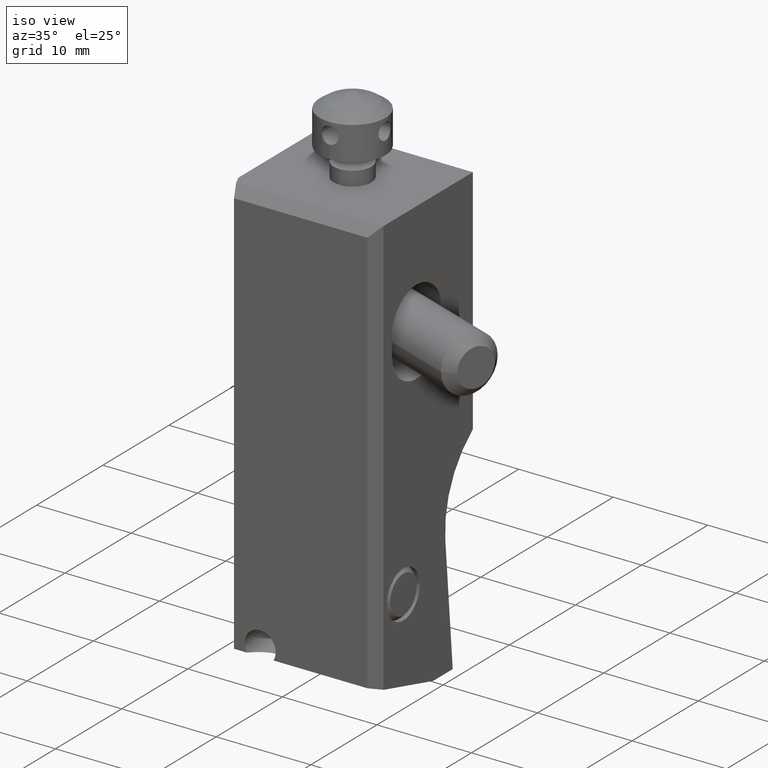
[diagram: clean part render]
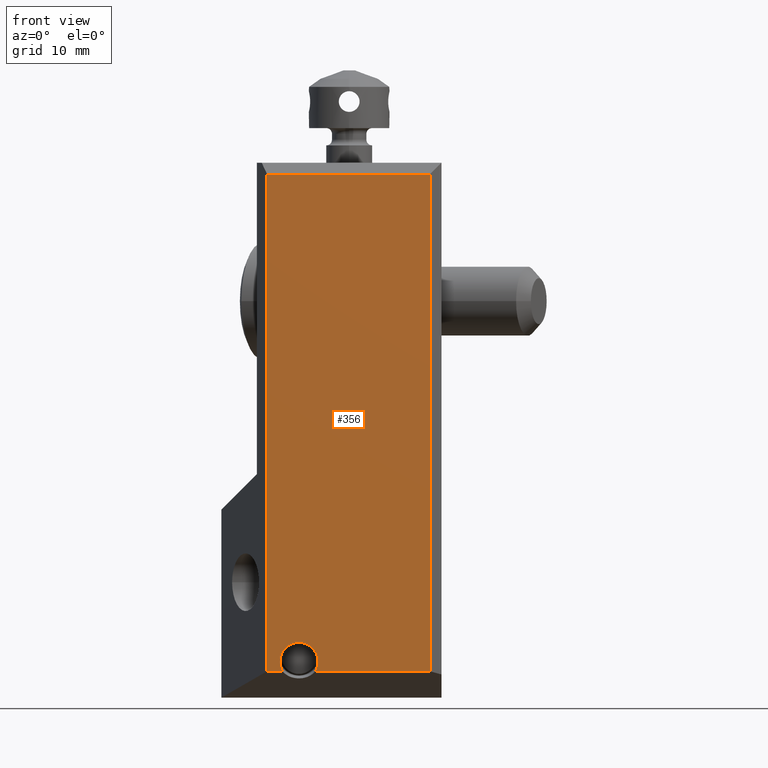
[diagram: tour spotlight — one face highlighted and labeled with its STEP entity id]
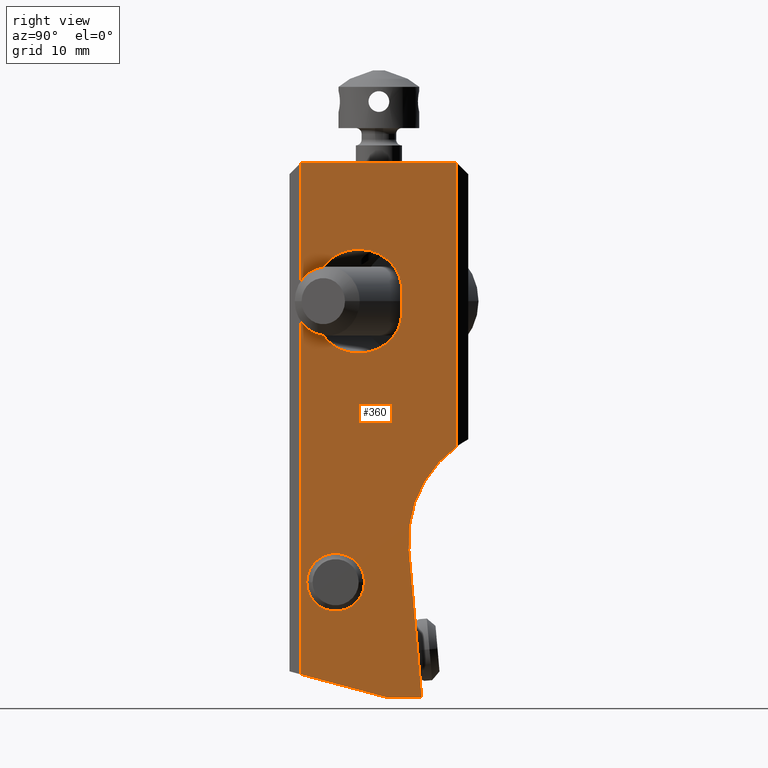
[diagram: tour spotlight — one face highlighted and labeled with its STEP entity id]
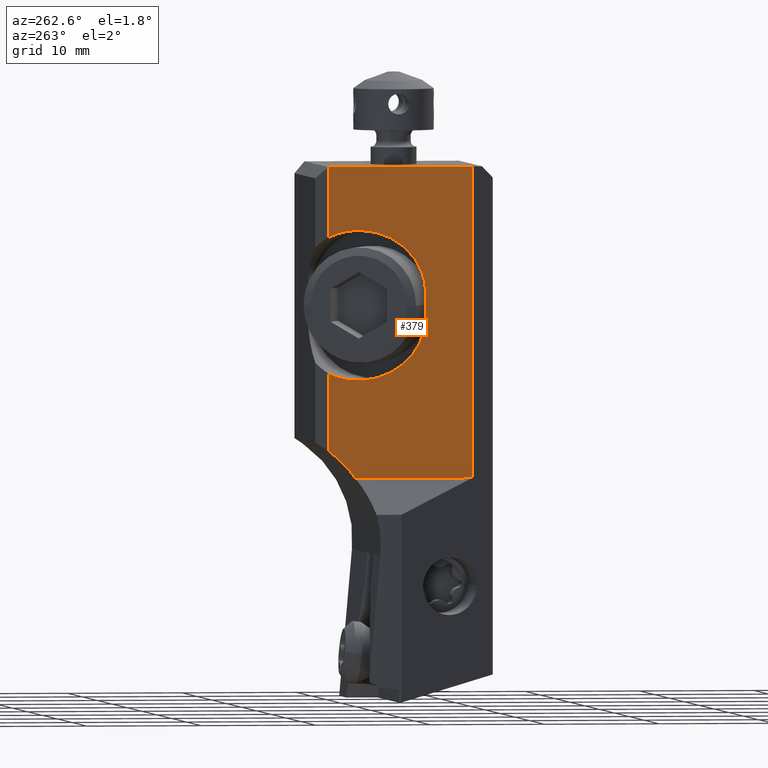
[diagram: tour spotlight — one face highlighted and labeled with its STEP entity id]
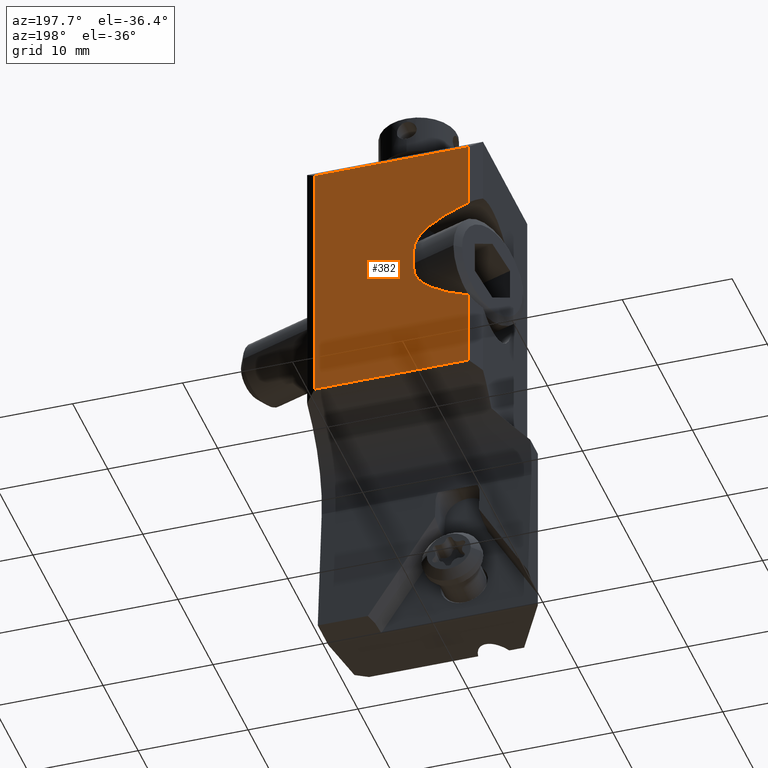
[diagram: tour spotlight — one face highlighted and labeled with its STEP entity id]
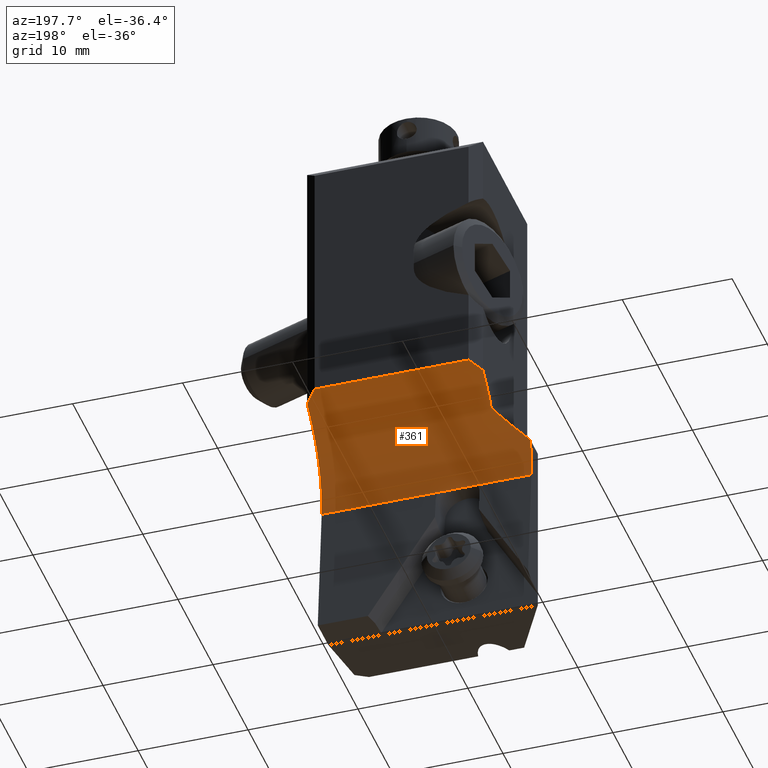
[diagram: tour spotlight — one face highlighted and labeled with its STEP entity id]
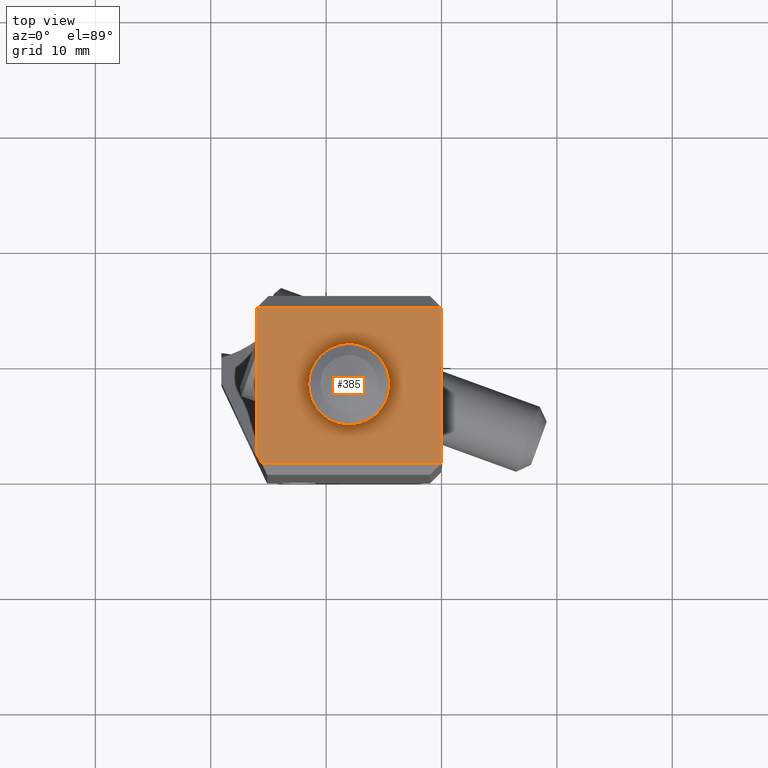
[diagram: tour spotlight — one face highlighted and labeled with its STEP entity id]
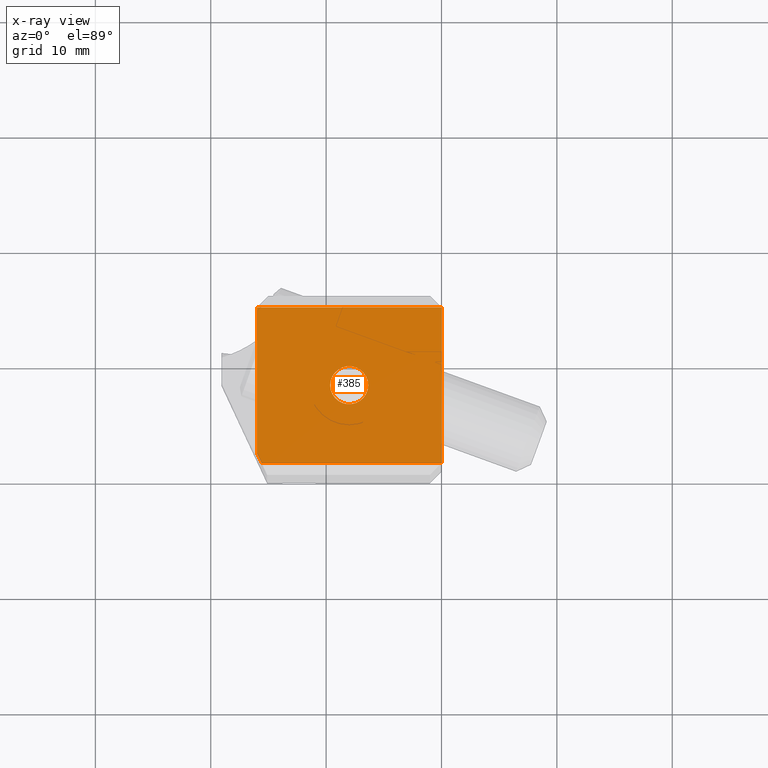
[diagram: x-ray of the same camera — body ghosted, this tour face saturated]
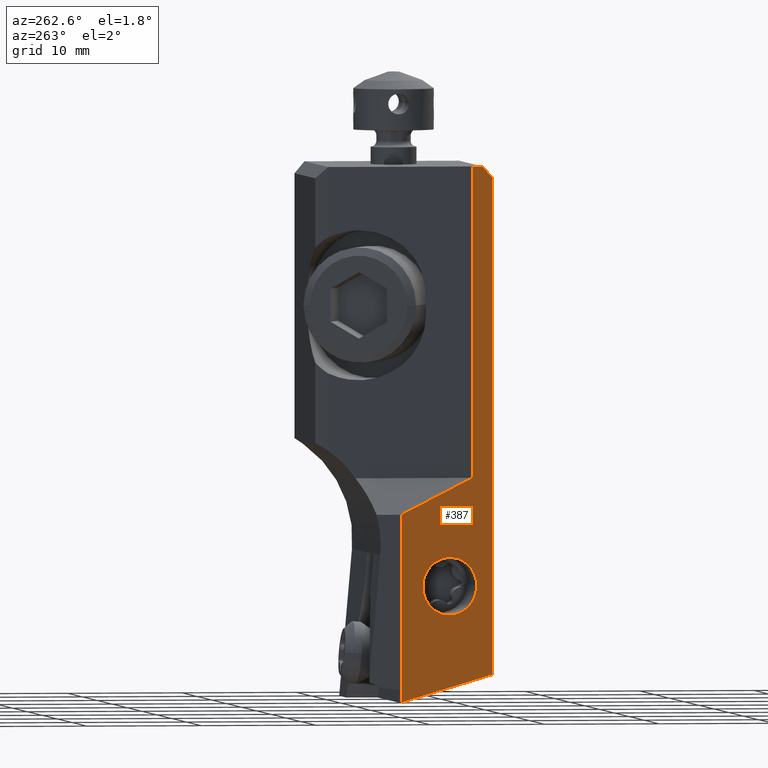
[diagram: tour spotlight — one face highlighted and labeled with its STEP entity id]
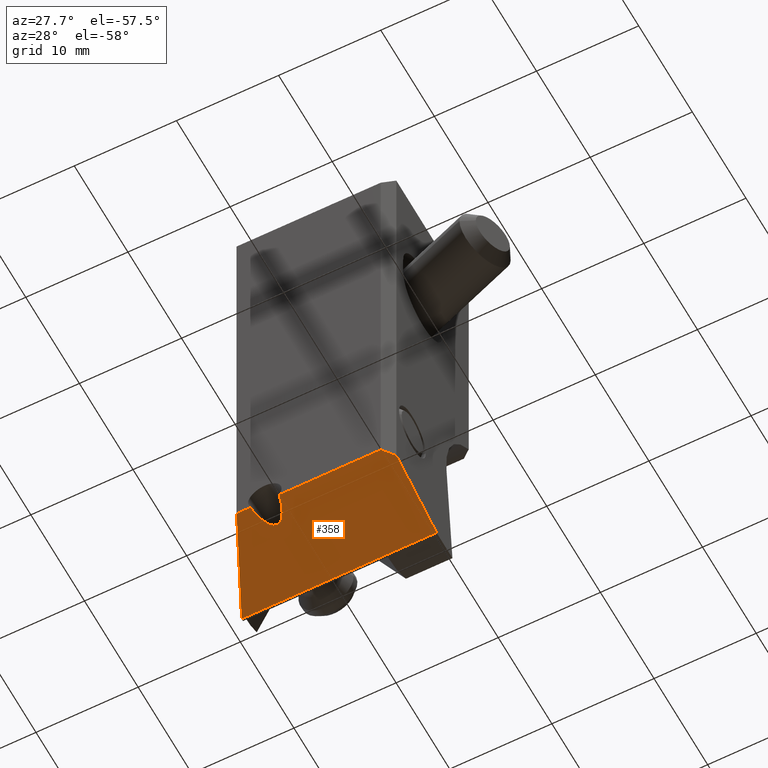
[diagram: tour spotlight — one face highlighted and labeled with its STEP entity id]
A machine part: a face-by-face anatomy tour. The part has 141 B-rep faces; the first image is the clean iso view, then the 8 largest visible faces are spotlighted one at a time (largest first), each with its STEP entity span.

Face 1 — front view, entity #356. In plain terms, the highlighted planar face has unit normal (0, 1, 0).
Definition (entity closure, byte-faithful):
#356=ADVANCED_FACE('',(#546),#497,.F.);
#497=PLANE('',#2659);
#546=FACE_OUTER_BOUND('',#674,.T.);
#674=EDGE_LOOP('',(#848,#849,#850,#851,#852,#853,#854));
#829=ELLIPSE('',#2657,1.65630273192278,1.649999999976);
#830=ELLIPSE('',#2658,1.65630273192278,1.649999999976);
#848=ORIENTED_EDGE('',*,*,#1827,.T.);
#849=ORIENTED_EDGE('',*,*,#1828,.T.);
#850=ORIENTED_EDGE('',*,*,#1829,.T.);
#851=ORIENTED_EDGE('',*,*,#1830,.T.);
#852=ORIENTED_EDGE('',*,*,#1831,.T.);
#853=ORIENTED_EDGE('',*,*,#1832,.T.);
#854=ORIENTED_EDGE('',*,*,#1833,.T.);
#1588=VERTEX_POINT('',#3780);
#1589=VERTEX_POINT('',#3781);
#1590=VERTEX_POINT('',#3783);
#1591=VERTEX_POINT('',#3785);
#1592=VERTEX_POINT('',#3787);
#1593=VERTEX_POINT('',#3789);
#1594=VERTEX_POINT('',#3791);
#1827=EDGE_CURVE('',#1588,#1589,#2197,.T.);
#1828=EDGE_CURVE('',#1589,#1590,#2198,.T.);
#1829=EDGE_CURVE('',#1590,#1591,#2199,.T.);
#1830=EDGE_CURVE('',#1591,#1592,#2200,.T.);
#1831=EDGE_CURVE('',#1592,#1593,#2201,.T.);
#1832=EDGE_CURVE('',#1593,#1594,#829,.T.);
#1833=EDGE_CURVE('',#1594,#1588,#830,.T.);
#2197=LINE('',#3779,#2371);
#2198=LINE('',#3782,#2372);
#2199=LINE('',#3784,#2373);
#2200=LINE('',#3786,#2374);
#2201=LINE('',#3788,#2375);
#2371=VECTOR('',#2993,1.);
#2372=VECTOR('',#2994,1.);
#2373=VECTOR('',#2995,1.);
#2374=VECTOR('',#2996,1.);
#2375=VECTOR('',#2997,1.);
#2657=AXIS2_PLACEMENT_3D('',#3790,#2998,#2999);
#2658=AXIS2_PLACEMENT_3D('',#3792,#3000,#3001);
#2659=AXIS2_PLACEMENT_3D('',#3793,#3002,#3003);
#2993=DIRECTION('',(1.,8.899418468579E-14,-8.045850571178E-13));
#2994=DIRECTION('',(0.,0.,1.));
#2995=DIRECTION('',(-1.,-5.736048320469E-14,0.));
#2996=DIRECTION('',(0.,0.,-1.));
#2997=DIRECTION('',(1.,2.927424162579E-13,5.861626492073E-12));
#2998=DIRECTION('',(0.,1.,0.));
#2999=DIRECTION('',(0.,0.,1.));
#3000=DIRECTION('',(0.,1.,0.));
#3001=DIRECTION('',(0.,0.,1.));
#3002=DIRECTION('',(0.,1.,0.));
#3003=DIRECTION('',(0.,0.,-1.));
#3779=CARTESIAN_POINT('',(-10.93506616434,-1.156186257845E-12,-44.0840598719));
#3780=CARTESIAN_POINT('',(-10.9350661643587,-5.78093128923214E-13,-44.0840598719044));
#3781=CARTESIAN_POINT('',(-1.,-2.720231447502E-13,-44.08405987191));
#3782=CARTESIAN_POINT('',(-1.,-2.720231447502E-13,-44.08405987191));
#3783=CARTESIAN_POINT('',(-1.,0.,-1.));
#3784=CARTESIAN_POINT('',(-1.,0.,-1.));
#3785=CARTESIAN_POINT('',(-15.11638490568,-8.096856518591E-13,-1.));
#3786=CARTESIAN_POINT('',(-15.11638490568,-8.096856518591E-13,-1.));
#3787=CARTESIAN_POINT('',(-15.11638490568,-1.082097374668E-12,-44.08405987191));
#3788=CARTESIAN_POINT('',(-15.11638490568,-1.082097374668E-12,-44.08405987191));
#3789=CARTESIAN_POINT('',(-13.7732741627807,-3.4445594524515E-13,-44.0840598719055));
#3790=CARTESIAN_POINT('',(-12.35417016357,0.,-43.2390344356227));
#3791=CARTESIAN_POINT('',(-12.35417016357,0.,-41.582731703695));
#3792=CARTESIAN_POINT('',(-12.35417016357,0.,-43.2390344356227));
#3793=CARTESIAN_POINT('',(-8.05819245284,0.,-22.54202993596));

Face 2 — right view, entity #360. In plain terms, the highlighted planar face has unit normal (1, 0, 0).
Definition (entity closure, byte-faithful):
#133=FACE_BOUND('',#678,.T.);
#134=FACE_BOUND('',#679,.T.);
#135=FACE_BOUND('',#680,.T.);
#221=CIRCLE('',#2666,10.);
#222=CIRCLE('',#2670,2.5);
#223=CIRCLE('',#2671,2.5);
#360=ADVANCED_FACE('',(#133,#134,#135),#500,.T.);
#500=PLANE('',#2672);
#678=EDGE_LOOP('',(#872,#873,#874,#875,#876,#877,#878));
#679=EDGE_LOOP('',(#879,#880,#881,#882,#883));
#680=EDGE_LOOP('',(#884,#885));
#833=ELLIPSE('',#2667,3.72462220366299,3.5);
#834=ELLIPSE('',#2668,3.72462220366299,3.5);
#835=ELLIPSE('',#2669,3.72462220366299,3.5);
#872=ORIENTED_EDGE('',*,*,#1845,.T.);
#873=ORIENTED_EDGE('',*,*,#1846,.T.);
#874=ORIENTED_EDGE('',*,*,#1844,.F.);
#875=ORIENTED_EDGE('',*,*,#1841,.F.);
#876=ORIENTED_EDGE('',*,*,#1847,.T.);
#877=ORIENTED_EDGE('',*,*,#1848,.F.);
#878=ORIENTED_EDGE('',*,*,#1849,.F.);
#879=ORIENTED_EDGE('',*,*,#1850,.T.);
#880=ORIENTED_EDGE('',*,*,#1851,.T.);
#881=ORIENTED_EDGE('',*,*,#1852,.T.);
#882=ORIENTED_EDGE('',*,*,#1853,.T.);
#883=ORIENTED_EDGE('',*,*,#1854,.T.);
#884=ORIENTED_EDGE('',*,*,#1855,.F.);
#885=ORIENTED_EDGE('',*,*,#1856,.F.);
#1599=VERTEX_POINT('',#3806);
#1600=VERTEX_POINT('',#3808);
#1601=VERTEX_POINT('',#3812);
#1602=VERTEX_POINT('',#3816);
#1603=VERTEX_POINT('',#3817);
#1604=VERTEX_POINT('',#3820);
#1605=VERTEX_POINT('',#3822);
#1606=VERTEX_POINT('',#3825);
#1607=VERTEX_POINT('',#3826);
#1608=VERTEX_POINT('',#3828);
#1609=VERTEX_POINT('',#3830);
#1610=VERTEX_POINT('',#3832);
#1611=VERTEX_POINT('',#3835);
#1612=VERTEX_POINT('',#3836);
#1841=EDGE_CURVE('',#1599,#1600,#2206,.T.);
#1844=EDGE_CURVE('',#1600,#1601,#2209,.T.);
#1845=EDGE_CURVE('',#1602,#1603,#2210,.T.);
#1846=EDGE_CURVE('',#1603,#1601,#2211,.T.);
#1847=EDGE_CURVE('',#1599,#1604,#2212,.T.);
#1848=EDGE_CURVE('',#1605,#1604,#2213,.T.);
#1849=EDGE_CURVE('',#1602,#1605,#221,.T.);
#1850=EDGE_CURVE('',#1606,#1607,#2214,.T.);
#1851=EDGE_CURVE('',#1607,#1608,#833,.T.);
#1852=EDGE_CURVE('',#1608,#1609,#834,.T.);
#1853=EDGE_CURVE('',#1609,#1610,#2215,.T.);
#1854=EDGE_CURVE('',#1610,#1606,#835,.T.);
#1855=EDGE_CURVE('',#1611,#1612,#222,.T.);
#1856=EDGE_CURVE('',#1612,#1611,#223,.T.);
#2206=LINE('',#3807,#2380);
#2209=LINE('',#3813,#2383);
#2210=LINE('',#3815,#2384);
#2211=LINE('',#3818,#2385);
#2212=LINE('',#3819,#2386);
#2213=LINE('',#3821,#2387);
#2214=LINE('',#3824,#2388);
#2215=LINE('',#3831,#2389);
#2380=VECTOR('',#3016,1.);
#2383=VECTOR('',#3021,1.);
#2384=VECTOR('',#3024,1.);
#2385=VECTOR('',#3025,1.);
#2386=VECTOR('',#3026,1.);
#2387=VECTOR('',#3027,1.);
#2388=VECTOR('',#3030,1.);
#2389=VECTOR('',#3035,1.);
#2666=AXIS2_PLACEMENT_3D('',#3823,#3028,#3029);
#2667=AXIS2_PLACEMENT_3D('',#3827,#3031,#3032);
#2668=AXIS2_PLACEMENT_3D('',#3829,#3033,#3034);
#2669=AXIS2_PLACEMENT_3D('',#3833,#3036,#3037);
#2670=AXIS2_PLACEMENT_3D('',#3834,#3038,#3039);
#2671=AXIS2_PLACEMENT_3D('',#3837,#3040,#3041);
#2672=AXIS2_PLACEMENT_3D('',#3838,#3042,#3043);
#3016=DIRECTION('',(0.,-0.965925826289157,0.258819045102189));
#3021=DIRECTION('',(0.,0.,1.));
#3024=DIRECTION('',(2.872542101019E-14,-1.117859866575E-13,1.));
#3025=DIRECTION('',(0.,-1.,0.));
#3026=DIRECTION('',(0.,1.,6.740080990406E-13));
#3027=DIRECTION('',(0.,0.0871557427473774,-0.99619469809177));
#3028=DIRECTION('',(1.,0.,0.));
#3029=DIRECTION('',(0.,-0.580866963927694,0.813998507503191));
#3030=DIRECTION('',(0.,0.,1.));
#3031=DIRECTION('',(-1.,0.,0.));
#3032=DIRECTION('',(0.,1.,0.));
#3033=DIRECTION('',(-1.,0.,0.));
#3034=DIRECTION('',(0.,1.,0.));
#3035=DIRECTION('',(0.,-5.595524044111E-14,-1.));
#3036=DIRECTION('',(-1.,0.,0.));
#3037=DIRECTION('',(0.,1.,0.));
#3038=DIRECTION('',(1.,0.,0.));
#3039=DIRECTION('',(0.,-1.,0.));
#3040=DIRECTION('',(1.,0.,0.));
#3041=DIRECTION('',(0.,1.,0.));
#3042=DIRECTION('',(1.,0.,0.));
#3043=DIRECTION('',(0.,0.,1.));
#3806=CARTESIAN_POINT('',(0.,8.499999999999,-46.36162800757));
#3807=CARTESIAN_POINT('',(0.,8.499999999999,-46.36162800757));
#3808=CARTESIAN_POINT('',(0.,0.9999999999996,-44.35200906434));
#3812=CARTESIAN_POINT('',(0.,1.,0.));
#3813=CARTESIAN_POINT('',(0.,0.9999999999996,-44.35200906434));
#3815=CARTESIAN_POINT('',(-7.067494737593E-13,14.5,-24.59879336949));
#3816=CARTESIAN_POINT('',(-3.53591577314152E-13,14.4999999999996,-24.5987933694906));
#3817=CARTESIAN_POINT('',(0.,14.5,0.));
#3818=CARTESIAN_POINT('',(0.,14.5,0.));
#3819=CARTESIAN_POINT('',(0.,8.499999999999,-46.36162800757));
#3820=CARTESIAN_POINT('',(0.,11.46231616553,-46.36162800757));
#3821=CARTESIAN_POINT('',(0.,10.34672265836,-33.610335872));
#3822=CARTESIAN_POINT('',(0.,10.34672265836,-33.610335872));
#3823=CARTESIAN_POINT('',(0.,20.30866963928,-32.73877844452));
#3824=CARTESIAN_POINT('',(3.041122909053E-12,2.275377796343,-13.));
#3825=CARTESIAN_POINT('',(1.52919690798997E-12,2.2753777963527,-13.0000000000005));
#3826=CARTESIAN_POINT('',(1.52055712547909E-12,2.27537779635268,-11.));
#3827=CARTESIAN_POINT('',(0.,6.00000000002535,-11.));
#3828=CARTESIAN_POINT('',(0.,6.,-7.5));
#3829=CARTESIAN_POINT('',(0.,6.00000000002535,-11.));
#3830=CARTESIAN_POINT('',(1.51321085291773E-12,9.72462220368106,-10.9999999999997));
#3831=CARTESIAN_POINT('',(2.382168536504E-12,9.724622203672,-11.));
#3832=CARTESIAN_POINT('',(1.52231815116661E-12,9.72462220368103,-13.0000000000001));
#3833=CARTESIAN_POINT('',(0.,6.00000000002535,-13.));
#3834=CARTESIAN_POINT('',(-1.06581410364E-14,4.,-36.36162800757));
#3835=CARTESIAN_POINT('',(-1.06581410364E-14,1.5,-36.36162800757));
#3836=CARTESIAN_POINT('',(-1.06581410364E-14,6.5,-36.36162800757));
#3837=CARTESIAN_POINT('',(-1.06581410364E-14,4.,-36.36162800757));
#3838=CARTESIAN_POINT('',(0.,7.750000000002,-23.18081400378));

Face 3 — auxiliary view, entity #379. In plain terms, the highlighted planar face has unit normal (1, 0, 0).
Definition (entity closure, byte-faithful):
#225=CIRCLE('',#2675,10.);
#379=ADVANCED_FACE('',(#567),#514,.F.);
#514=PLANE('',#2708);
#567=FACE_OUTER_BOUND('',#700,.T.);
#700=EDGE_LOOP('',(#986,#987,#988,#989,#990,#991,#992,#993,#994,#995));
#839=ELLIPSE('',#2705,5.85297774861327,5.5);
#840=ELLIPSE('',#2706,5.85297774861327,5.5);
#841=ELLIPSE('',#2707,5.85297774861327,5.5);
#986=ORIENTED_EDGE('',*,*,#1906,.T.);
#987=ORIENTED_EDGE('',*,*,#1860,.F.);
#988=ORIENTED_EDGE('',*,*,#1905,.F.);
#989=ORIENTED_EDGE('',*,*,#1907,.T.);
#990=ORIENTED_EDGE('',*,*,#1908,.T.);
#991=ORIENTED_EDGE('',*,*,#1909,.T.);
#992=ORIENTED_EDGE('',*,*,#1910,.F.);
#993=ORIENTED_EDGE('',*,*,#1911,.T.);
#994=ORIENTED_EDGE('',*,*,#1912,.T.);
#995=ORIENTED_EDGE('',*,*,#1913,.T.);
#1616=VERTEX_POINT('',#3845);
#1617=VERTEX_POINT('',#3847);
#1643=VERTEX_POINT('',#3934);
#1644=VERTEX_POINT('',#3938);
#1645=VERTEX_POINT('',#3940);
#1646=VERTEX_POINT('',#3942);
#1647=VERTEX_POINT('',#3944);
#1648=VERTEX_POINT('',#3946);
#1649=VERTEX_POINT('',#3948);
#1650=VERTEX_POINT('',#3950);
#1860=EDGE_CURVE('',#1616,#1617,#225,.T.);
#1905=EDGE_CURVE('',#1643,#1616,#2250,.T.);
#1906=EDGE_CURVE('',#1644,#1617,#2251,.T.);
#1907=EDGE_CURVE('',#1643,#1645,#2252,.T.);
#1908=EDGE_CURVE('',#1645,#1646,#2253,.T.);
#1909=EDGE_CURVE('',#1646,#1647,#2254,.T.);
#1910=EDGE_CURVE('',#1648,#1647,#839,.T.);
#1911=EDGE_CURVE('',#1648,#1649,#840,.T.);
#1912=EDGE_CURVE('',#1649,#1650,#2255,.T.);
#1913=EDGE_CURVE('',#1650,#1644,#841,.T.);
#2250=LINE('',#3935,#2424);
#2251=LINE('',#3937,#2425);
#2252=LINE('',#3939,#2426);
#2253=LINE('',#3941,#2427);
#2254=LINE('',#3943,#2428);
#2255=LINE('',#3949,#2429);
#2424=VECTOR('',#3140,1.);
#2425=VECTOR('',#3143,1.);
#2426=VECTOR('',#3144,1.);
#2427=VECTOR('',#3145,1.);
#2428=VECTOR('',#3146,1.);
#2429=VECTOR('',#3151,1.);
#2675=AXIS2_PLACEMENT_3D('',#3846,#3049,#3050);
#2705=AXIS2_PLACEMENT_3D('',#3945,#3147,#3148);
#2706=AXIS2_PLACEMENT_3D('',#3947,#3149,#3150);
#2707=AXIS2_PLACEMENT_3D('',#3951,#3152,#3153);
#2708=AXIS2_PLACEMENT_3D('',#3952,#3154,#3155);
#3049=DIRECTION('',(-1.,0.,0.));
#3050=DIRECTION('',(0.,-0.818940913404094,0.573877844451996));
#3140=DIRECTION('',(1.765178219324E-13,1.,1.372530308332E-13));
#3143=DIRECTION('',(2.913132328524E-13,4.073088655701E-13,-1.));
#3144=DIRECTION('',(0.,0.,1.));
#3145=DIRECTION('',(8.680910386145E-14,1.,0.));
#3146=DIRECTION('',(-1.221315965241E-13,-8.92723812688E-14,-1.));
#3147=DIRECTION('',(-1.,0.,0.));
#3148=DIRECTION('',(0.,1.,0.));
#3149=DIRECTION('',(1.,0.,0.));
#3150=DIRECTION('',(0.,1.,0.));
#3151=DIRECTION('',(0.,8.704148513061E-14,-1.));
#3152=DIRECTION('',(1.,0.,0.));
#3153=DIRECTION('',(0.,1.,0.));
#3154=DIRECTION('',(1.,0.,0.));
#3155=DIRECTION('',(0.,0.,-1.));
#3845=CARTESIAN_POINT('',(-15.9999999999998,12.1192605052401,-26.9999999999986));
#3846=CARTESIAN_POINT('',(-16.,20.30866963928,-32.73877844452));
#3847=CARTESIAN_POINT('',(-16.0000000000002,14.5000000000027,-24.5987933694885));
#3934=CARTESIAN_POINT('',(-16.,1.89491868483,-27.));
#3935=CARTESIAN_POINT('',(-16.,1.89491868483,-27.));
#3937=CARTESIAN_POINT('',(-16.,14.5,-17.89126242691));
#3938=CARTESIAN_POINT('',(-16.,14.5,-17.891262426906));
#3939=CARTESIAN_POINT('',(-16.,1.89491868483,-27.));
#3940=CARTESIAN_POINT('',(-16.,1.89491868483,0.));
#3941=CARTESIAN_POINT('',(-16.,1.89491868483,0.));
#3942=CARTESIAN_POINT('',(-16.,14.5,0.));
#3943=CARTESIAN_POINT('',(-16.,14.5,0.));
#3944=CARTESIAN_POINT('',(-16.0000000000004,14.4999999999997,-6.10873757309378));
#3945=CARTESIAN_POINT('',(-16.,11.8235237482478,-11.));
#3946=CARTESIAN_POINT('',(-16.,11.82352374825,-5.5));
#3947=CARTESIAN_POINT('',(-16.,11.8235237482478,-11.));
#3948=CARTESIAN_POINT('',(-16.0000000000001,5.97054599963714,-11.));
#3949=CARTESIAN_POINT('',(-16.,5.97054599964,-11.));
#3950=CARTESIAN_POINT('',(-16.,5.97054599963733,-13.0000000000002));
#3951=CARTESIAN_POINT('',(-16.,11.8235237482478,-13.));
#3952=CARTESIAN_POINT('',(-16.,8.197459342417,-13.5));

Face 4 — auxiliary view, entity #382. In plain terms, the highlighted planar face has unit normal (0, 1, 0).
Definition (entity closure, byte-faithful):
#382=ADVANCED_FACE('',(#570),#516,.T.);
#516=PLANE('',#2715);
#570=FACE_OUTER_BOUND('',#703,.T.);
#703=EDGE_LOOP('',(#1006,#1007,#1008,#1009,#1010,#1011,#1012,#1013));
#842=ELLIPSE('',#2710,16.080924200985,5.5);
#844=ELLIPSE('',#2714,16.080924200985,5.5);
#1006=ORIENTED_EDGE('',*,*,#1920,.T.);
#1007=ORIENTED_EDGE('',*,*,#1921,.T.);
#1008=ORIENTED_EDGE('',*,*,#1922,.F.);
#1009=ORIENTED_EDGE('',*,*,#1923,.T.);
#1010=ORIENTED_EDGE('',*,*,#1924,.T.);
#1011=ORIENTED_EDGE('',*,*,#1862,.F.);
#1012=ORIENTED_EDGE('',*,*,#1919,.F.);
#1013=ORIENTED_EDGE('',*,*,#1917,.F.);
#1618=VERTEX_POINT('',#3849);
#1619=VERTEX_POINT('',#3851);
#1653=VERTEX_POINT('',#3958);
#1654=VERTEX_POINT('',#3960);
#1655=VERTEX_POINT('',#3966);
#1656=VERTEX_POINT('',#3968);
#1657=VERTEX_POINT('',#3970);
#1658=VERTEX_POINT('',#3972);
#1862=EDGE_CURVE('',#1618,#1619,#2217,.T.);
#1917=EDGE_CURVE('',#1653,#1654,#842,.T.);
#1919=EDGE_CURVE('',#1654,#1618,#2258,.T.);
#1920=EDGE_CURVE('',#1653,#1655,#2259,.T.);
#1921=EDGE_CURVE('',#1655,#1656,#844,.T.);
#1922=EDGE_CURVE('',#1657,#1656,#2260,.T.);
#1923=EDGE_CURVE('',#1657,#1658,#2261,.T.);
#1924=EDGE_CURVE('',#1658,#1619,#2262,.T.);
#2217=LINE('',#3850,#2391);
#2258=LINE('',#3963,#2432);
#2259=LINE('',#3965,#2433);
#2260=LINE('',#3969,#2434);
#2261=LINE('',#3971,#2435);
#2262=LINE('',#3973,#2436);
#2391=VECTOR('',#3053,1.);
#2432=VECTOR('',#3166,1.);
#2433=VECTOR('',#3169,1.);
#2434=VECTOR('',#3172,1.);
#2435=VECTOR('',#3173,1.);
#2436=VECTOR('',#3174,1.);
#2710=AXIS2_PLACEMENT_3D('',#3959,#3160,#3161);
#2714=AXIS2_PLACEMENT_3D('',#3967,#3170,#3171);
#2715=AXIS2_PLACEMENT_3D('',#3974,#3175,#3176);
#3053=DIRECTION('',(1.,0.,1.218073261303E-14));
#3160=DIRECTION('',(0.,1.,0.));
#3161=DIRECTION('',(-1.,0.,0.));
#3166=DIRECTION('',(3.882199230717E-13,5.193203682975E-13,-1.));
#3169=DIRECTION('',(3.330669073876E-13,-1.216804434989E-13,1.));
#3170=DIRECTION('',(0.,-1.,0.));
#3171=DIRECTION('',(-1.,0.,0.));
#3172=DIRECTION('',(-1.947260212903E-13,-3.634885730753E-13,-1.));
#3173=DIRECTION('',(1.,0.,0.));
#3174=DIRECTION('',(0.,4.825450592872E-14,-1.));
#3175=DIRECTION('',(0.,1.,0.));
#3176=DIRECTION('',(0.,0.,-1.));
#3849=CARTESIAN_POINT('',(-14.9999999999986,15.5000000000018,-23.9708427524494));
#3850=CARTESIAN_POINT('',(-15.,15.5,-23.97084275245));
#3851=CARTESIAN_POINT('',(-1.00000000000045,15.5000000000006,-23.9708427524501));
#3958=CARTESIAN_POINT('',(-10.0201112839225,15.5,-13.0000000000004));
#3959=CARTESIAN_POINT('',(-26.1010354849128,15.5,-13.));
#3960=CARTESIAN_POINT('',(-15.,15.5,-16.9792560530063));
#3963=CARTESIAN_POINT('',(-15.,15.5,-16.97925605302));
#3965=CARTESIAN_POINT('',(-10.02011128392,15.5,-13.));
#3966=CARTESIAN_POINT('',(-10.020111283923,15.5,-11.0000000000004));
#3967=CARTESIAN_POINT('',(-26.1010354849128,15.5,-11.));
#3968=CARTESIAN_POINT('',(-15.0000000000006,15.4999999999989,-7.02074394699272));
#3969=CARTESIAN_POINT('',(-15.,15.5,-1.));
#3970=CARTESIAN_POINT('',(-15.,15.5,-1.));
#3971=CARTESIAN_POINT('',(-15.,15.5,-1.));
#3972=CARTESIAN_POINT('',(-1.,15.5,-1.));
#3973=CARTESIAN_POINT('',(-1.,15.5,-1.));
#3974=CARTESIAN_POINT('',(-8.,15.5,-12.48542137622));

Face 5 — auxiliary view, entity #361. In plain terms, the highlighted cylindrical surface (partial cylindrical patch) has radius 10 mm, axis along (-1, 0, 0).
Definition (entity closure, byte-faithful):
#161=CYLINDRICAL_SURFACE('',#2678,10.);
#221=CIRCLE('',#2666,10.);
#224=CIRCLE('',#2673,10.);
#225=CIRCLE('',#2675,10.);
#361=ADVANCED_FACE('',(#550),#161,.F.);
#550=FACE_OUTER_BOUND('',#681,.T.);
#681=EDGE_LOOP('',(#886,#887,#888,#889,#890,#891,#892,#893,#894,#895));
#836=ELLIPSE('',#2674,14.142135623731,10.);
#837=ELLIPSE('',#2676,14.142135623731,10.);
#838=ELLIPSE('',#2677,14.142135623731,10.);
#886=ORIENTED_EDGE('',*,*,#1857,.T.);
#887=ORIENTED_EDGE('',*,*,#1858,.T.);
#888=ORIENTED_EDGE('',*,*,#1859,.T.);
#889=ORIENTED_EDGE('',*,*,#1860,.T.);
#890=ORIENTED_EDGE('',*,*,#1861,.T.);
#891=ORIENTED_EDGE('',*,*,#1862,.T.);
#892=ORIENTED_EDGE('',*,*,#1863,.T.);
#893=ORIENTED_EDGE('',*,*,#1849,.T.);
#894=ORIENTED_EDGE('',*,*,#1864,.T.);
#895=ORIENTED_EDGE('',*,*,#1865,.T.);
#1602=VERTEX_POINT('',#3816);
#1605=VERTEX_POINT('',#3822);
#1613=VERTEX_POINT('',#3840);
#1614=VERTEX_POINT('',#3841);
#1615=VERTEX_POINT('',#3843);
#1616=VERTEX_POINT('',#3845);
#1617=VERTEX_POINT('',#3847);
#1618=VERTEX_POINT('',#3849);
#1619=VERTEX_POINT('',#3851);
#1620=VERTEX_POINT('',#3854);
#1849=EDGE_CURVE('',#1602,#1605,#221,.T.);
#1857=EDGE_CURVE('',#1613,#1614,#2216,.T.);
#1858=EDGE_CURVE('',#1614,#1615,#224,.T.);
#1859=EDGE_CURVE('',#1615,#1616,#836,.T.);
#1860=EDGE_CURVE('',#1616,#1617,#225,.T.);
#1861=EDGE_CURVE('',#1617,#1618,#837,.T.);
#1862=EDGE_CURVE('',#1618,#1619,#2217,.T.);
#1863=EDGE_CURVE('',#1619,#1602,#838,.T.);
#1864=EDGE_CURVE('',#1605,#1620,#2218,.T.);
#1865=EDGE_CURVE('',#1620,#1613,#2219,.T.);
#2216=LINE('',#3839,#2390);
#2217=LINE('',#3850,#2391);
#2218=LINE('',#3853,#2392);
#2219=LINE('',#3855,#2393);
#2390=VECTOR('',#3044,1.);
#2391=VECTOR('',#3053,1.);
#2392=VECTOR('',#3056,1.);
#2393=VECTOR('',#3057,1.);
#2666=AXIS2_PLACEMENT_3D('',#3823,#3028,#3029);
#2673=AXIS2_PLACEMENT_3D('',#3842,#3045,#3046);
#2674=AXIS2_PLACEMENT_3D('',#3844,#3047,#3048);
#2675=AXIS2_PLACEMENT_3D('',#3846,#3049,#3050);
#2676=AXIS2_PLACEMENT_3D('',#3848,#3051,#3052);
#2677=AXIS2_PLACEMENT_3D('',#3852,#3054,#3055);
#2678=AXIS2_PLACEMENT_3D('',#3856,#3058,#3059);
#3028=DIRECTION('',(1.,0.,0.));
#3029=DIRECTION('',(0.,-0.580866963927694,0.813998507503191));
#3044=DIRECTION('',(-1.,-9.315323110627E-14,1.609339868139E-13));
#3045=DIRECTION('',(-1.,0.,0.));
#3046=DIRECTION('',(0.,-0.996194698091717,-0.0871557427479817));
#3047=DIRECTION('',(-0.707106781186548,0.,0.707106781186548));
#3048=DIRECTION('',(-0.707106781186548,0.,-0.707106781186548));
#3049=DIRECTION('',(-1.,0.,0.));
#3050=DIRECTION('',(0.,-0.818940913404094,0.573877844451996));
#3051=DIRECTION('',(-0.707106781186548,0.707106781186548,0.));
#3052=DIRECTION('',(-0.707106781186548,-0.707106781186548,0.));
#3053=DIRECTION('',(1.,0.,1.218073261303E-14));
#3054=DIRECTION('',(0.707106781186548,0.707106781186548,0.));
#3055=DIRECTION('',(-0.707106781186548,0.707106781186548,0.));
#3056=DIRECTION('',(-1.,-4.006145570592E-14,-1.656096997383E-13));
#3057=DIRECTION('',(-1.,-1.686210341953E-14,2.459883322378E-13));
#3058=DIRECTION('',(-1.,0.,0.));
#3059=DIRECTION('',(0.,0.,-1.));
#3816=CARTESIAN_POINT('',(-3.53591577314152E-13,14.4999999999996,-24.5987933694906));
#3822=CARTESIAN_POINT('',(0.,10.34672265836,-33.610335872));
#3823=CARTESIAN_POINT('',(0.,20.30866963928,-32.73877844452));
#3839=CARTESIAN_POINT('',(-14.17921768355,10.34672265836,-33.610335872));
#3840=CARTESIAN_POINT('',(-14.17921768355,10.34672265836,-33.610335872));
#3841=CARTESIAN_POINT('',(-19.08,10.34672265836,-33.610335872));
#3842=CARTESIAN_POINT('',(-19.08,20.30866963928,-32.73877844452));
#3843=CARTESIAN_POINT('',(-19.0800000000045,10.6686023582418,-30.0799999999976));
#3844=CARTESIAN_POINT('',(-21.73877844452,20.30866963928,-32.73877844452));
#3845=CARTESIAN_POINT('',(-15.9999999999998,12.1192605052401,-26.9999999999986));
#3846=CARTESIAN_POINT('',(-16.,20.30866963928,-32.73877844452));
#3847=CARTESIAN_POINT('',(-16.0000000000002,14.5000000000027,-24.5987933694885));
#3848=CARTESIAN_POINT('',(-10.19133036072,20.30866963928,-32.73877844452));
#3849=CARTESIAN_POINT('',(-14.9999999999986,15.5000000000018,-23.9708427524494));
#3850=CARTESIAN_POINT('',(-15.,15.5,-23.97084275245));
#3851=CARTESIAN_POINT('',(-1.00000000000045,15.5000000000006,-23.9708427524501));
#3852=CARTESIAN_POINT('',(-5.8086696392809,20.30866963928,-32.73877844452));
#3853=CARTESIAN_POINT('',(0.,10.34672265836,-33.610335872));
#3854=CARTESIAN_POINT('',(-10.59745027073,10.34672265836,-33.610335872));
#3855=CARTESIAN_POINT('',(-10.59745027073,10.34672265836,-33.610335872));
#3856=CARTESIAN_POINT('',(0.3816,20.30866963928,-32.73877844452));

Face 6 — top view, entity #385. An x-ray twin of the same camera follows (body ghosted, this face saturated) — the face is partly hidden behind the body. In plain terms, the highlighted planar face has unit normal (0, 0, 1).
Definition (entity closure, byte-faithful):
#138=FACE_BOUND('',#706,.T.);
#139=FACE_BOUND('',#707,.T.);
#236=CIRCLE('',#2718,1.65);
#237=CIRCLE('',#2719,1.65);
#385=ADVANCED_FACE('',(#138,#139),#519,.T.);
#519=PLANE('',#2720);
#706=EDGE_LOOP('',(#1022,#1023,#1024,#1025,#1026));
#707=EDGE_LOOP('',(#1027,#1028));
#1022=ORIENTED_EDGE('',*,*,#1846,.F.);
#1023=ORIENTED_EDGE('',*,*,#1927,.F.);
#1024=ORIENTED_EDGE('',*,*,#1908,.F.);
#1025=ORIENTED_EDGE('',*,*,#1928,.F.);
#1026=ORIENTED_EDGE('',*,*,#1929,.T.);
#1027=ORIENTED_EDGE('',*,*,#1930,.F.);
#1028=ORIENTED_EDGE('',*,*,#1931,.F.);
#1601=VERTEX_POINT('',#3812);
#1603=VERTEX_POINT('',#3817);
#1645=VERTEX_POINT('',#3940);
#1646=VERTEX_POINT('',#3942);
#1659=VERTEX_POINT('',#3981);
#1660=VERTEX_POINT('',#3984);
#1661=VERTEX_POINT('',#3985);
#1846=EDGE_CURVE('',#1603,#1601,#2211,.T.);
#1908=EDGE_CURVE('',#1645,#1646,#2253,.T.);
#1927=EDGE_CURVE('',#1646,#1603,#2265,.T.);
#1928=EDGE_CURVE('',#1659,#1645,#2266,.T.);
#1929=EDGE_CURVE('',#1659,#1601,#2267,.T.);
#1930=EDGE_CURVE('',#1660,#1661,#236,.T.);
#1931=EDGE_CURVE('',#1661,#1660,#237,.T.);
#2211=LINE('',#3818,#2385);
#2253=LINE('',#3941,#2427);
#2265=LINE('',#3978,#2439);
#2266=LINE('',#3980,#2440);
#2267=LINE('',#3982,#2441);
#2385=VECTOR('',#3025,1.);
#2427=VECTOR('',#3145,1.);
#2439=VECTOR('',#3181,1.);
#2440=VECTOR('',#3184,1.);
#2441=VECTOR('',#3185,1.);
#2718=AXIS2_PLACEMENT_3D('',#3983,#3186,#3187);
#2719=AXIS2_PLACEMENT_3D('',#3986,#3188,#3189);
#2720=AXIS2_PLACEMENT_3D('',#3987,#3190,#3191);
#3025=DIRECTION('',(0.,-1.,0.));
#3145=DIRECTION('',(8.680910386145E-14,1.,0.));
#3181=DIRECTION('',(1.,0.,0.));
#3184=DIRECTION('',(-0.422618261739219,0.90630778703734,0.));
#3185=DIRECTION('',(1.,1.080819839996E-14,0.));
#3186=DIRECTION('',(0.,0.,1.));
#3187=DIRECTION('',(1.,0.,0.));
#3188=DIRECTION('',(0.,0.,1.));
#3189=DIRECTION('',(-1.,0.,0.));
#3190=DIRECTION('',(0.,0.,1.));
#3191=DIRECTION('',(-1.,0.,0.));
#3812=CARTESIAN_POINT('',(0.,1.,0.));
#3817=CARTESIAN_POINT('',(0.,14.5,0.));
#3818=CARTESIAN_POINT('',(0.,14.5,0.));
#3940=CARTESIAN_POINT('',(-16.,1.89491868483,0.));
#3941=CARTESIAN_POINT('',(-16.,1.89491868483,0.));
#3942=CARTESIAN_POINT('',(-16.,14.5,0.));
#3978=CARTESIAN_POINT('',(-16.,14.5,0.));
#3980=CARTESIAN_POINT('',(-15.58269256384,0.9999999999998,0.));
#3981=CARTESIAN_POINT('',(-15.58269256384,0.9999999999998,0.));
#3982=CARTESIAN_POINT('',(-15.58269256384,0.9999999999998,0.));
#3983=CARTESIAN_POINT('',(-8.,7.75,-1.24344978758E-14));
#3984=CARTESIAN_POINT('',(-6.35,7.75,0.));
#3985=CARTESIAN_POINT('',(-9.65,7.75,0.));
#3986=CARTESIAN_POINT('',(-8.,7.75,0.));
#3987=CARTESIAN_POINT('',(-8.,7.75,0.));

Face 7 — auxiliary view, entity #387. In plain terms, the highlighted planar face has unit normal (0.9063, 0.4226, 0).
Definition (entity closure, byte-faithful):
#140=FACE_BOUND('',#709,.T.);
#141=FACE_BOUND('',#710,.T.);
#387=ADVANCED_FACE('',(#140,#141),#521,.F.);
#521=PLANE('',#2724);
#709=EDGE_LOOP('',(#1033,#1034,#1035,#1036,#1037,#1038,#1039));
#710=EDGE_LOOP('',(#1040,#1041));
#845=ELLIPSE('',#2722,2.7584447974062,2.5);
#846=ELLIPSE('',#2723,2.7584447974062,2.5);
#1033=ORIENTED_EDGE('',*,*,#1928,.T.);
#1034=ORIENTED_EDGE('',*,*,#1907,.F.);
#1035=ORIENTED_EDGE('',*,*,#1904,.F.);
#1036=ORIENTED_EDGE('',*,*,#1881,.F.);
#1037=ORIENTED_EDGE('',*,*,#1839,.F.);
#1038=ORIENTED_EDGE('',*,*,#1830,.F.);
#1039=ORIENTED_EDGE('',*,*,#1932,.F.);
#1040=ORIENTED_EDGE('',*,*,#1933,.F.);
#1041=ORIENTED_EDGE('',*,*,#1934,.F.);
#1591=VERTEX_POINT('',#3785);
#1592=VERTEX_POINT('',#3787);
#1598=VERTEX_POINT('',#3804);
#1632=VERTEX_POINT('',#3888);
#1643=VERTEX_POINT('',#3934);
#1645=VERTEX_POINT('',#3940);
#1659=VERTEX_POINT('',#3981);
#1662=VERTEX_POINT('',#3991);
#1663=VERTEX_POINT('',#3992);
#1830=EDGE_CURVE('',#1591,#1592,#2200,.T.);
#1839=EDGE_CURVE('',#1592,#1598,#2204,.T.);
#1881=EDGE_CURVE('',#1598,#1632,#2229,.T.);
#1904=EDGE_CURVE('',#1632,#1643,#2249,.T.);
#1907=EDGE_CURVE('',#1643,#1645,#2252,.T.);
#1928=EDGE_CURVE('',#1659,#1645,#2266,.T.);
#1932=EDGE_CURVE('',#1659,#1591,#2268,.T.);
#1933=EDGE_CURVE('',#1662,#1663,#845,.T.);
#1934=EDGE_CURVE('',#1663,#1662,#846,.T.);
#2200=LINE('',#3786,#2374);
#2204=LINE('',#3803,#2378);
#2229=LINE('',#3887,#2403);
#2249=LINE('',#3933,#2423);
#2252=LINE('',#3939,#2426);
#2266=LINE('',#3980,#2440);
#2268=LINE('',#3988,#2442);
#2374=VECTOR('',#2996,1.);
#2378=VECTOR('',#3014,1.);
#2403=VECTOR('',#3089,1.);
#2423=VECTOR('',#3139,1.);
#2426=VECTOR('',#3144,1.);
#2440=VECTOR('',#3184,1.);
#2442=VECTOR('',#3192,1.);
#2722=AXIS2_PLACEMENT_3D('',#3990,#3195,#3196);
#2723=AXIS2_PLACEMENT_3D('',#3993,#3197,#3198);
#2724=AXIS2_PLACEMENT_3D('',#3994,#3199,#3200);
#2996=DIRECTION('',(0.,0.,-1.));
#3014=DIRECTION('',(-0.410682057589979,0.880710514630456,-0.235985671160388));
#3089=DIRECTION('',(-1.549247231773E-14,1.865642793191E-14,1.));
#3139=DIRECTION('',(0.389281620635004,-0.834817129479008,0.389281620635004));
#3144=DIRECTION('',(0.,0.,1.));
#3184=DIRECTION('',(-0.422618261739219,0.90630778703734,0.));
#3192=DIRECTION('',(0.313145613017109,-0.67154293423752,-0.67154293423712));
#3195=DIRECTION('',(-0.906307787036659,-0.422618261740681,0.));
#3196=DIRECTION('',(0.422618261740681,-0.906307787036659,0.));
#3197=DIRECTION('',(-0.906307787036659,-0.422618261740681,0.));
#3198=DIRECTION('',(0.422618261740681,-0.906307787036659,0.));
#3199=DIRECTION('',(0.906307787036659,0.422618261740681,0.));
#3200=DIRECTION('',(-0.422618261740681,0.906307787036659,0.));
#3785=CARTESIAN_POINT('',(-15.11638490568,-8.096856518591E-13,-1.));
#3786=CARTESIAN_POINT('',(-15.11638490568,-8.096856518591E-13,-1.));
#3787=CARTESIAN_POINT('',(-15.11638490568,-1.082097374668E-12,-44.08405987191));
#3803=CARTESIAN_POINT('',(-15.11638490568,-1.082097374668E-12,-44.08405987191));
#3804=CARTESIAN_POINT('',(-19.08,8.499999999999,-46.36162800757));
#3887=CARTESIAN_POINT('',(-19.08,8.499999999999,-46.36162800757));
#3888=CARTESIAN_POINT('',(-19.08,8.5,-30.08));
#3933=CARTESIAN_POINT('',(-19.08,8.5,-30.08));
#3934=CARTESIAN_POINT('',(-16.,1.89491868483,-27.));
#3939=CARTESIAN_POINT('',(-16.,1.89491868483,-27.));
#3940=CARTESIAN_POINT('',(-16.,1.89491868483,0.));
#3980=CARTESIAN_POINT('',(-15.58269256384,0.9999999999998,0.));
#3981=CARTESIAN_POINT('',(-15.58269256384,0.9999999999998,0.));
#3988=CARTESIAN_POINT('',(-15.58269256384,0.9999999999998,0.));
#3990=CARTESIAN_POINT('',(-16.9816155383022,4.,-36.36162800757));
#3991=CARTESIAN_POINT('',(-18.1473846836896,6.4999999999995,-36.36162800757));
#3992=CARTESIAN_POINT('',(-15.8158463929172,1.49999999999959,-36.36162800757));
#3993=CARTESIAN_POINT('',(-16.9816155383022,4.,-36.36162800757));
#3994=CARTESIAN_POINT('',(-17.09819245284,4.249999999998,-23.18081400378));

Face 8 — auxiliary view, entity #358. In plain terms, the highlighted planar face has unit normal (0, 0.2588, 0.9659).
Definition (entity closure, byte-faithful):
#358=ADVANCED_FACE('',(#548),#498,.F.);
#498=PLANE('',#2664);
#548=FACE_OUTER_BOUND('',#676,.T.);
#676=EDGE_LOOP('',(#860,#861,#862,#863,#864,#865,#866,#867));
#831=ELLIPSE('',#2661,4.82427726016871,1.649999999976);
#832=ELLIPSE('',#2663,4.82427726016871,1.649999999976);
#860=ORIENTED_EDGE('',*,*,#1838,.T.);
#861=ORIENTED_EDGE('',*,*,#1831,.F.);
#862=ORIENTED_EDGE('',*,*,#1839,.T.);
#863=ORIENTED_EDGE('',*,*,#1840,.T.);
#864=ORIENTED_EDGE('',*,*,#1841,.T.);
#865=ORIENTED_EDGE('',*,*,#1842,.T.);
#866=ORIENTED_EDGE('',*,*,#1827,.F.);
#867=ORIENTED_EDGE('',*,*,#1837,.F.);
#1588=VERTEX_POINT('',#3780);
#1589=VERTEX_POINT('',#3781);
#1592=VERTEX_POINT('',#3787);
#1593=VERTEX_POINT('',#3789);
#1597=VERTEX_POINT('',#3799);
#1598=VERTEX_POINT('',#3804);
#1599=VERTEX_POINT('',#3806);
#1600=VERTEX_POINT('',#3808);
#1827=EDGE_CURVE('',#1588,#1589,#2197,.T.);
#1831=EDGE_CURVE('',#1592,#1593,#2201,.T.);
#1837=EDGE_CURVE('',#1597,#1588,#831,.T.);
#1838=EDGE_CURVE('',#1597,#1593,#832,.T.);
#1839=EDGE_CURVE('',#1592,#1598,#2204,.T.);
#1840=EDGE_CURVE('',#1598,#1599,#2205,.T.);
#1841=EDGE_CURVE('',#1599,#1600,#2206,.T.);
#1842=EDGE_CURVE('',#1600,#1589,#2207,.T.);
#2197=LINE('',#3779,#2371);
#2201=LINE('',#3788,#2375);
#2204=LINE('',#3803,#2378);
#2205=LINE('',#3805,#2379);
#2206=LINE('',#3807,#2380);
#2207=LINE('',#3809,#2381);
#2371=VECTOR('',#2993,1.);
#2375=VECTOR('',#2997,1.);
#2378=VECTOR('',#3014,1.);
#2379=VECTOR('',#3015,1.);
#2380=VECTOR('',#3016,1.);
#2381=VECTOR('',#3017,1.);
#2661=AXIS2_PLACEMENT_3D('',#3800,#3008,#3009);
#2663=AXIS2_PLACEMENT_3D('',#3802,#3012,#3013);
#2664=AXIS2_PLACEMENT_3D('',#3810,#3018,#3019);
#2993=DIRECTION('',(1.,8.899418468579E-14,-8.045850571178E-13));
#2997=DIRECTION('',(1.,2.927424162579E-13,5.861626492073E-12));
#3008=DIRECTION('',(0.,-0.2588190451024,-0.965925826289101));
#3009=DIRECTION('',(0.,0.965925826289101,-0.2588190451024));
#3012=DIRECTION('',(0.,0.2588190451024,0.965925826289101));
#3013=DIRECTION('',(0.,0.965925826289101,-0.2588190451024));
#3014=DIRECTION('',(-0.410682057589979,0.880710514630456,-0.235985671160388));
#3015=DIRECTION('',(1.,1.107895513043E-14,-2.718533527803E-14));
#3016=DIRECTION('',(0.,-0.965925826289157,0.258819045102189));
#3017=DIRECTION('',(-0.694746590606981,-0.694746590606881,0.186156787896895));
#3018=DIRECTION('',(0.,0.2588190451024,0.965925826289101));
#3019=DIRECTION('',(0.,-0.965925826289101,0.2588190451024));
#3779=CARTESIAN_POINT('',(-10.93506616434,-1.156186257845E-12,-44.0840598719));
#3780=CARTESIAN_POINT('',(-10.9350661643587,-5.78093128923214E-13,-44.0840598719044));
#3781=CARTESIAN_POINT('',(-1.,-2.720231447502E-13,-44.08405987191));
#3787=CARTESIAN_POINT('',(-15.11638490568,-1.082097374668E-12,-44.08405987191));
#3788=CARTESIAN_POINT('',(-15.11638490568,-1.082097374668E-12,-44.08405987191));
#3789=CARTESIAN_POINT('',(-13.7732741627807,-3.4445594524515E-13,-44.0840598719055));
#3799=CARTESIAN_POINT('',(-12.35417016357,2.28247296127831,-44.6956466586287));
#3800=CARTESIAN_POINT('',(-12.35417016357,-2.37742103751265,-43.4470318248389));
#3802=CARTESIAN_POINT('',(-12.35417016357,-2.37742103751265,-43.4470318248389));
#3803=CARTESIAN_POINT('',(-15.11638490568,-1.082097374668E-12,-44.08405987191));
#3804=CARTESIAN_POINT('',(-19.08,8.499999999999,-46.36162800757));
#3805=CARTESIAN_POINT('',(-19.08,8.499999999999,-46.36162800757));
#3806=CARTESIAN_POINT('',(0.,8.499999999999,-46.36162800757));
#3807=CARTESIAN_POINT('',(0.,8.499999999999,-46.36162800757));
#3808=CARTESIAN_POINT('',(0.,0.9999999999996,-44.35200906434));
#3809=CARTESIAN_POINT('',(0.,0.9999999999996,-44.35200906434));
#3810=CARTESIAN_POINT('',(-9.54,4.249999999998,-45.22284393974));